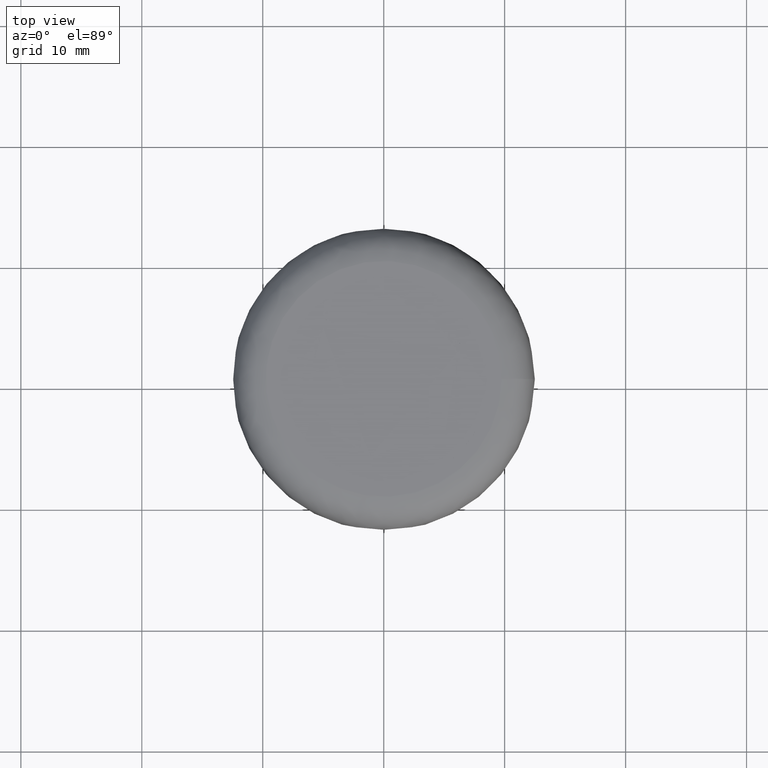
[diagram: clean part render]
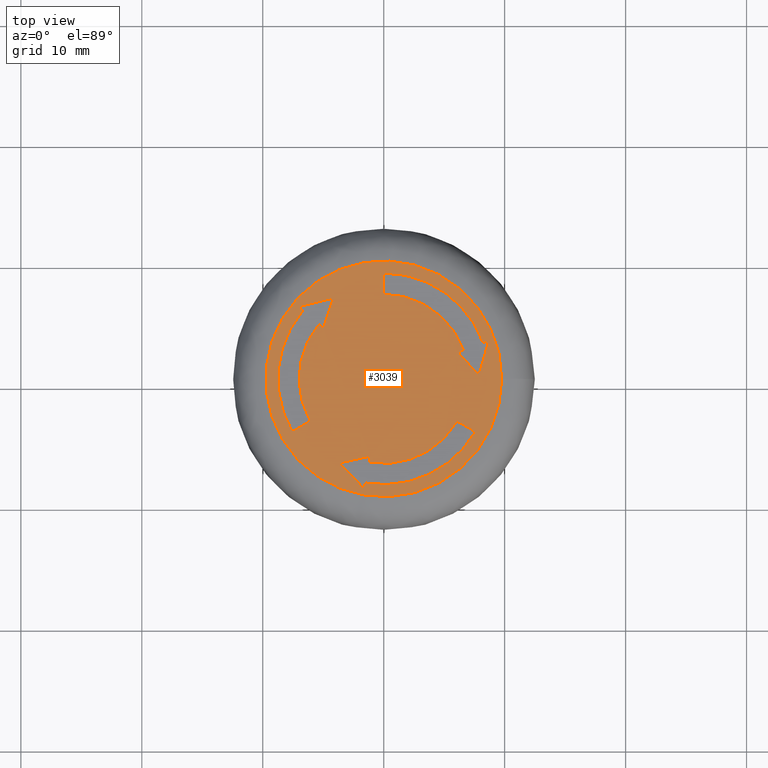
[diagram: same view with one face highlighted and labeled with its STEP entity id]
A machine part, top view. The second image highlights one B-rep face of the part: STEP entity #3039.
In plain terms, the highlighted planar face has unit normal (0, 0, 1).
Its self-contained STEP definition (entity closure, byte-faithful):
#113=FACE_BOUND('',#463,.T.);
#114=FACE_BOUND('',#464,.T.);
#115=FACE_BOUND('',#465,.T.);
#141=CIRCLE('',#3223,7.);
#143=CIRCLE('',#3230,8.75);
#145=CIRCLE('',#3237,8.75);
#147=CIRCLE('',#3241,7.);
#149=CIRCLE('',#3249,8.75);
#151=CIRCLE('',#3253,7.);
#156=CIRCLE('',#3262,9.75);
#280=FACE_OUTER_BOUND('',#462,.T.);
#462=EDGE_LOOP('',(#2121));
#463=EDGE_LOOP('',(#2122,#2123,#2124,#2125,#2126,#2127,#2128));
#464=EDGE_LOOP('',(#2129,#2130,#2131,#2132,#2133,#2134,#2135));
#465=EDGE_LOOP('',(#2136,#2137,#2138,#2139,#2140,#2141,#2142));
#635=LINE('',#4297,#952);
#640=LINE('',#4311,#957);
#643=LINE('',#4317,#960);
#646=LINE('',#4323,#963);
#649=LINE('',#4329,#966);
#652=LINE('',#4340,#969);
#656=LINE('',#4348,#973);
#659=LINE('',#4354,#976);
#663=LINE('',#4366,#980);
#667=LINE('',#4377,#984);
#669=LINE('',#4383,#986);
#673=LINE('',#4391,#990);
#676=LINE('',#4397,#993);
#680=LINE('',#4409,#997);
#684=LINE('',#4420,#1001);
#952=VECTOR('',#3477,10.);
#957=VECTOR('',#3490,10.);
#960=VECTOR('',#3495,10.);
#963=VECTOR('',#3500,10.);
#966=VECTOR('',#3505,10.);
#969=VECTOR('',#3518,10.);
#973=VECTOR('',#3524,10.);
#976=VECTOR('',#3529,10.);
#980=VECTOR('',#3541,10.);
#984=VECTOR('',#3553,10.);
#986=VECTOR('',#3559,10.);
#990=VECTOR('',#3565,10.);
#993=VECTOR('',#3570,10.);
#997=VECTOR('',#3582,10.);
#1001=VECTOR('',#3594,10.);
#1269=VERTEX_POINT('',#4295);
#1270=VERTEX_POINT('',#4296);
#1273=VERTEX_POINT('',#4304);
#1275=VERTEX_POINT('',#4310);
#1277=VERTEX_POINT('',#4316);
#1279=VERTEX_POINT('',#4322);
#1281=VERTEX_POINT('',#4328);
#1283=VERTEX_POINT('',#4338);
#1284=VERTEX_POINT('',#4339);
#1287=VERTEX_POINT('',#4347);
#1289=VERTEX_POINT('',#4353);
#1291=VERTEX_POINT('',#4359);
#1293=VERTEX_POINT('',#4365);
#1295=VERTEX_POINT('',#4371);
#1297=VERTEX_POINT('',#4381);
#1298=VERTEX_POINT('',#4382);
#1301=VERTEX_POINT('',#4390);
#1303=VERTEX_POINT('',#4396);
#1305=VERTEX_POINT('',#4402);
#1307=VERTEX_POINT('',#4408);
#1309=VERTEX_POINT('',#4414);
#1314=VERTEX_POINT('',#4567);
#1561=EDGE_CURVE('',#1269,#1270,#635,.T.);
#1565=EDGE_CURVE('',#1273,#1269,#141,.T.);
#1568=EDGE_CURVE('',#1275,#1273,#640,.T.);
#1571=EDGE_CURVE('',#1277,#1275,#643,.T.);
#1574=EDGE_CURVE('',#1279,#1277,#646,.T.);
#1577=EDGE_CURVE('',#1281,#1279,#649,.T.);
#1580=EDGE_CURVE('',#1270,#1281,#143,.T.);
#1582=EDGE_CURVE('',#1283,#1284,#652,.T.);
#1586=EDGE_CURVE('',#1287,#1283,#656,.T.);
#1589=EDGE_CURVE('',#1289,#1287,#659,.T.);
#1592=EDGE_CURVE('',#1291,#1289,#145,.T.);
#1595=EDGE_CURVE('',#1293,#1291,#663,.T.);
#1598=EDGE_CURVE('',#1295,#1293,#147,.T.);
#1601=EDGE_CURVE('',#1284,#1295,#667,.T.);
#1603=EDGE_CURVE('',#1297,#1298,#669,.T.);
#1607=EDGE_CURVE('',#1301,#1297,#673,.T.);
#1610=EDGE_CURVE('',#1303,#1301,#676,.T.);
#1613=EDGE_CURVE('',#1305,#1303,#149,.T.);
#1616=EDGE_CURVE('',#1307,#1305,#680,.T.);
#1619=EDGE_CURVE('',#1309,#1307,#151,.T.);
#1622=EDGE_CURVE('',#1298,#1309,#684,.T.);
#1629=EDGE_CURVE('',#1314,#1314,#156,.T.);
#2121=ORIENTED_EDGE('',*,*,#1629,.T.);
#2122=ORIENTED_EDGE('',*,*,#1561,.T.);
#2123=ORIENTED_EDGE('',*,*,#1580,.T.);
#2124=ORIENTED_EDGE('',*,*,#1577,.T.);
#2125=ORIENTED_EDGE('',*,*,#1574,.T.);
#2126=ORIENTED_EDGE('',*,*,#1571,.T.);
#2127=ORIENTED_EDGE('',*,*,#1568,.T.);
#2128=ORIENTED_EDGE('',*,*,#1565,.T.);
#2129=ORIENTED_EDGE('',*,*,#1582,.T.);
#2130=ORIENTED_EDGE('',*,*,#1601,.T.);
#2131=ORIENTED_EDGE('',*,*,#1598,.T.);
#2132=ORIENTED_EDGE('',*,*,#1595,.T.);
#2133=ORIENTED_EDGE('',*,*,#1592,.T.);
#2134=ORIENTED_EDGE('',*,*,#1589,.T.);
#2135=ORIENTED_EDGE('',*,*,#1586,.T.);
#2136=ORIENTED_EDGE('',*,*,#1603,.T.);
#2137=ORIENTED_EDGE('',*,*,#1622,.T.);
#2138=ORIENTED_EDGE('',*,*,#1619,.T.);
#2139=ORIENTED_EDGE('',*,*,#1616,.T.);
#2140=ORIENTED_EDGE('',*,*,#1613,.T.);
#2141=ORIENTED_EDGE('',*,*,#1610,.T.);
#2142=ORIENTED_EDGE('',*,*,#1607,.T.);
#2912=PLANE('',#3263);
#3039=ADVANCED_FACE('',(#280,#113,#114,#115),#2912,.T.);
#3223=AXIS2_PLACEMENT_3D('',#4305,#3483,#3484);
#3230=AXIS2_PLACEMENT_3D('',#4334,#3510,#3511);
#3237=AXIS2_PLACEMENT_3D('',#4360,#3534,#3535);
#3241=AXIS2_PLACEMENT_3D('',#4372,#3546,#3547);
#3249=AXIS2_PLACEMENT_3D('',#4403,#3575,#3576);
#3253=AXIS2_PLACEMENT_3D('',#4415,#3587,#3588);
#3262=AXIS2_PLACEMENT_3D('',#4583,#3609,#3610);
#3263=AXIS2_PLACEMENT_3D('',#4584,#3611,#3612);
#3477=DIRECTION('',(0.,1.,0.));
#3483=DIRECTION('center_axis',(0.,0.,1.));
#3484=DIRECTION('ref_axis',(-1.,0.,0.));
#3490=DIRECTION('',(0.939692620785907,0.342020143325674,0.));
#3495=DIRECTION('',(-0.670799336500554,0.741638894712526,0.));
#3500=DIRECTION('',(-0.273664374380445,-0.961825249302054,0.));
#3505=DIRECTION('',(0.939692620785908,0.342020143325669,0.));
#3510=DIRECTION('center_axis',(0.,0.,-1.));
#3511=DIRECTION('ref_axis',(-1.,0.,0.));
#3518=DIRECTION('',(0.977677791505937,0.210109818894963,0.));
#3524=DIRECTION('',(-0.696132912706658,0.717912924975268,0.));
#3529=DIRECTION('',(-0.173648177666932,-0.984807753012208,0.));
#3534=DIRECTION('center_axis',(0.,0.,-1.));
#3535=DIRECTION('ref_axis',(-1.,0.,0.));
#3541=DIRECTION('',(0.866025403784438,-0.5,0.));
#3546=DIRECTION('center_axis',(0.,0.,1.));
#3547=DIRECTION('ref_axis',(-1.,0.,0.));
#3553=DIRECTION('',(-0.173648177666924,-0.984807753012209,0.));
#3559=DIRECTION('',(-0.306878455005382,-0.951748713607489,0.));
#3565=DIRECTION('',(0.969797287087103,0.243912324326787,0.));
#3570=DIRECTION('',(-0.766044443118977,0.64278760968654,0.));
#3575=DIRECTION('center_axis',(0.,0.,-1.));
#3576=DIRECTION('ref_axis',(-1.,0.,0.));
#3582=DIRECTION('',(-0.866025403784439,-0.5,0.));
#3587=DIRECTION('center_axis',(0.,0.,1.));
#3588=DIRECTION('ref_axis',(-1.,0.,0.));
#3594=DIRECTION('',(-0.76604444311898,0.642787609686537,0.));
#3609=DIRECTION('center_axis',(0.,0.,1.));
#3610=DIRECTION('ref_axis',(1.,0.,0.));
#3611=DIRECTION('center_axis',(0.,0.,1.));
#3612=DIRECTION('ref_axis',(1.,0.,0.));
#4295=CARTESIAN_POINT('',(0.,7.,0.));
#4296=CARTESIAN_POINT('',(0.,8.75,0.));
#4297=CARTESIAN_POINT('',(0.,3.5,0.));
#4304=CARTESIAN_POINT('',(6.57784834550136,2.39414100327968,0.));
#4305=CARTESIAN_POINT('Origin',(0.,0.,0.));
#4310=CARTESIAN_POINT('',(6.10800203510841,2.22313093161684,0.));
#4311=CARTESIAN_POINT('',(3.05400101755421,1.1115654658084,0.));
#4316=CARTESIAN_POINT('',(7.87020276277538,0.274833536532195,0.));
#4317=CARTESIAN_POINT('',(6.16788189712165,2.15692747513951,0.));
#4322=CARTESIAN_POINT('',(8.69215674226965,3.16368632576244,0.));
#4323=CARTESIAN_POINT('',(7.95030092154513,0.556347824615072,0.));
#4328=CARTESIAN_POINT('',(8.2223104318767,2.9926762540996,0.));
#4329=CARTESIAN_POINT('',(4.11115521593835,1.4963381270498,0.));
#4334=CARTESIAN_POINT('Origin',(0.,0.,0.));
#4338=CARTESIAN_POINT('',(-3.69708855693889,-6.95321229376405,0.));
#4339=CARTESIAN_POINT('',(-1.12871315483505,-6.40125039457935,0.));
#4340=CARTESIAN_POINT('',(-1.21598696096939,-6.42000614801926,0.));
#4347=CARTESIAN_POINT('',(-1.60624564341911,-9.10947171536292,0.));
#4348=CARTESIAN_POINT('',(-3.49333911131571,-7.16333647809646,0.));
#4353=CARTESIAN_POINT('',(-1.51942155458565,-8.61706783885682,0.));
#4354=CARTESIAN_POINT('',(-0.759710777292819,-4.30853391942841,0.));
#4359=CARTESIAN_POINT('',(7.57772228311384,-4.375,0.));
#4360=CARTESIAN_POINT('Origin',(0.,0.,0.));
#4365=CARTESIAN_POINT('',(6.06217782649107,-3.5,0.));
#4366=CARTESIAN_POINT('',(3.03108891324553,-1.75,0.));
#4371=CARTESIAN_POINT('',(-1.21553724366852,-6.89365427108546,0.));
#4372=CARTESIAN_POINT('Origin',(0.,0.,0.));
#4377=CARTESIAN_POINT('',(-0.564356577417549,-3.20062519728967,0.));
#4381=CARTESIAN_POINT('',(-4.17311420583649,6.67837875723186,0.));
#4382=CARTESIAN_POINT('',(-4.97928888027336,4.17811946296251,0.));
#4383=CARTESIAN_POINT('',(-4.95189493615227,4.26307867287975,0.));
#4390=CARTESIAN_POINT('',(-7.08591109885054,5.94578538960049,0.));
#4391=CARTESIAN_POINT('',(-4.45696181022943,6.60698865348139,0.));
#4396=CARTESIAN_POINT('',(-6.70288887729106,5.62439158475722,0.));
#4397=CARTESIAN_POINT('',(-3.35144443864553,2.81219579237861,0.));
#4402=CARTESIAN_POINT('',(-7.57772228311384,-4.375,0.));
#4403=CARTESIAN_POINT('Origin',(0.,0.,0.));
#4408=CARTESIAN_POINT('',(-6.06217782649107,-3.5,0.));
#4409=CARTESIAN_POINT('',(-3.03108891324554,-1.75,0.));
#4414=CARTESIAN_POINT('',(-5.36231110183285,4.49951326780578,0.));
#4415=CARTESIAN_POINT('Origin',(0.,0.,0.));
#4420=CARTESIAN_POINT('',(-2.48964444013667,2.08905973148126,0.));
#4567=CARTESIAN_POINT('',(9.75,0.,5.97015314584335E-16));
#4583=CARTESIAN_POINT('Origin',(0.,0.,5.97015314584335E-16));
#4584=CARTESIAN_POINT('Origin',(0.,0.,0.));